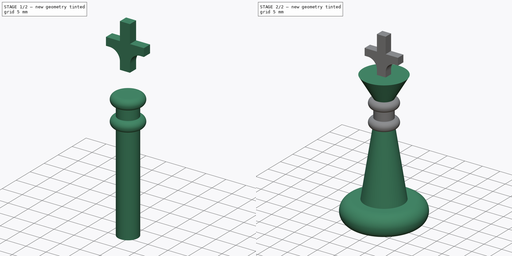
[diagram: build sequence overview — one tinted view per stage of 2, left to right]
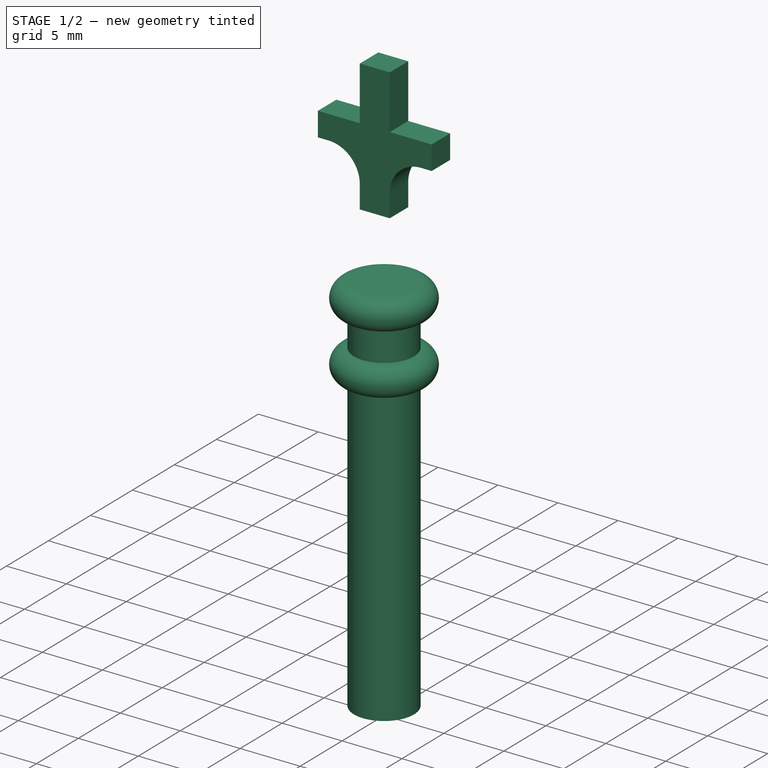
[diagram: stage 1 of 2 — iso view after this stage's code; geometry added in this stage tinted green]
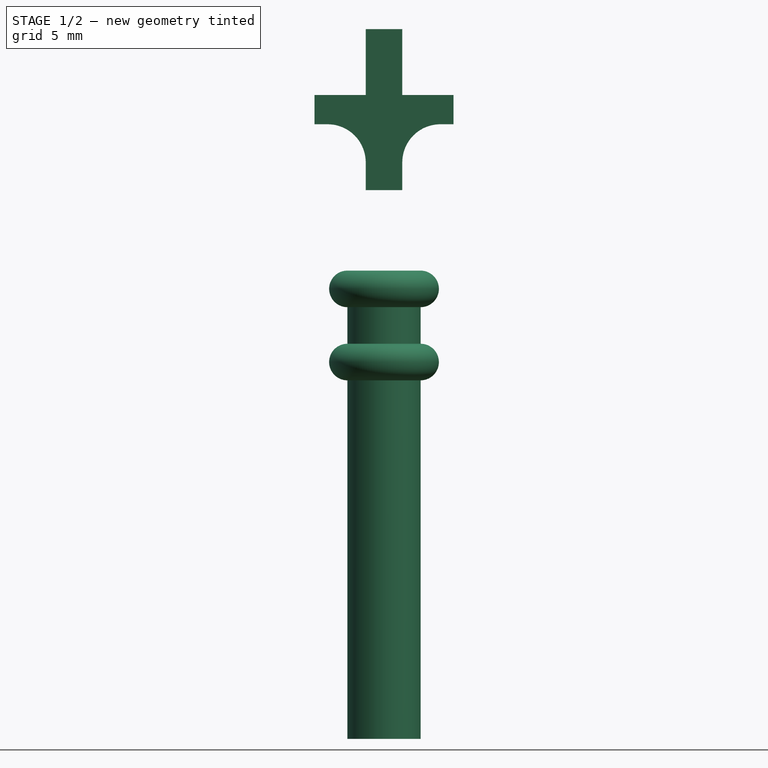
[diagram: stage 1 of 2 — front view after this stage's code; geometry added in this stage tinted green]
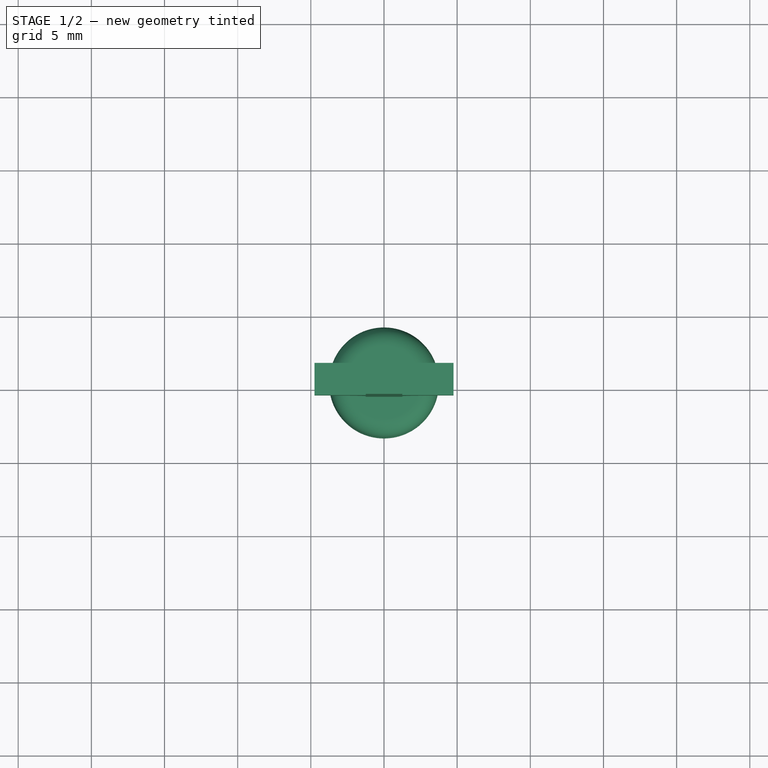
[diagram: stage 1 of 2 — top view after this stage's code; geometry added in this stage tinted green]
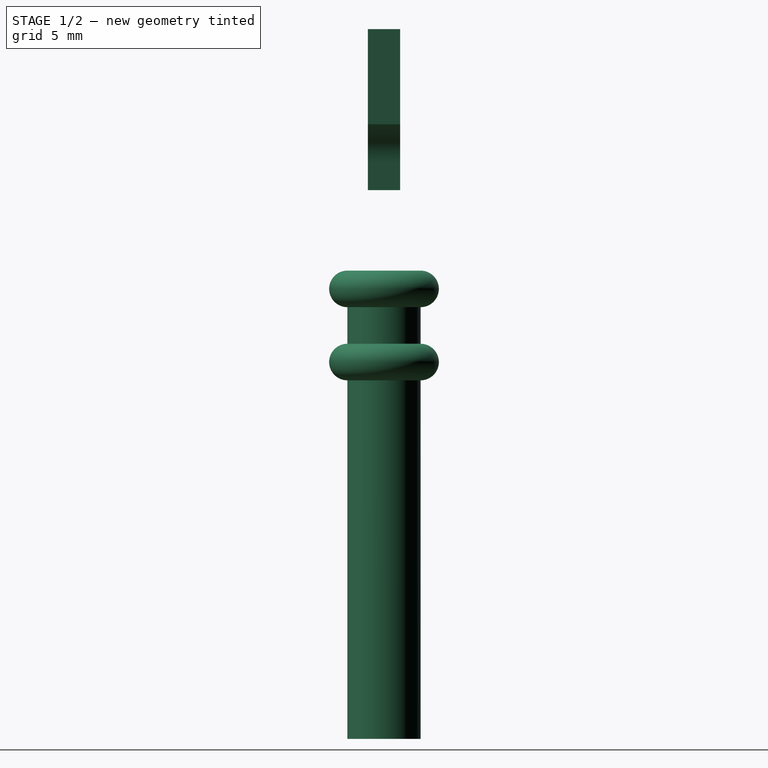
[diagram: stage 1 of 2 — right view after this stage's code; geometry added in this stage tinted green]
FCSTD DOCUMENT  (FreeCAD 0.16R4699 (Git))
Label: king-v001
License: All rights reserved
LicenseURL: http://en.wikipedia.org/wiki/All_rights_reserved
objects: Sketcher::SketchObject×3, PartDesign::Revolution×2, PartDesign::Pad×1, Part::MultiFuse×1
note: 10 computed .brp shape members not serialized (recipe doc carries the construction recipe); baked Part::Feature solids carry a one-line shape summary decoded from their .brp

FEATURE [Sketcher::SketchObject] Sketch002
  Placement = pos=(0,0,0) rot=(-1,0,0;4.71239rad)
  sketch-geometry (7):
    g0: LineSegment StartX=0 StartY=0 StartZ=0 EndX=2.5 EndY=0 EndZ=0
    g1: LineSegment StartX=2.5 StartY=32 StartZ=0 EndX=0 EndY=32 EndZ=0
    g2: LineSegment StartX=0 StartY=32 StartZ=0 EndX=0 EndY=0 EndZ=0
    g3: ArcOfCircle CenterX=2.5 CenterY=30.75 CenterZ=0 NormalX=0 NormalY=0 NormalZ=1 Radius=1.25 StartAngle=4.71239 EndAngle=7.85398
    g4: ArcOfCircle CenterX=2.5 CenterY=25.75 CenterZ=0 NormalX=0 NormalY=0 NormalZ=1 Radius=1.25 StartAngle=4.71239 EndAngle=7.85398
    g5: LineSegment StartX=2.5 StartY=29.5 StartZ=0 EndX=2.5 EndY=27 EndZ=0
    g6: LineSegment StartX=2.5 StartY=24.5 StartZ=0 EndX=2.5 EndY=0 EndZ=0
  constraints (22):
    c: Coincident(g1,g2)
    c: Coincident(g2,g0)
    c: Horizontal(g0)
    c: Horizontal(g1)
    c: Vertical(g2)
    c: Coincident(g0,g-1)
    c: DistanceY(g2) = -32
    c: DistanceX(g1) = -2.5
    c: DistanceY(g3,g1) = 2.5
    c: DistanceY(g4,g4) = 2.5
    c: DistanceY(g4,g3) = 5
    c: Coincident(g5,g3)
    c: Coincident(g5,g4)
    c: Vertical(g5)
    c: Coincident(g6,g4)
    c: Coincident(g6,g0)
    c: Vertical(g6)
    c: Coincident(g3,g1)
    c: DistanceX(g1,g3) = 0
    c: DistanceX(g4,g4) = 0
    c: DistanceX(g4,g1) = 0
    c: DistanceX(g3,g1) = 0
FEATURE [PartDesign::Revolution] Revolution002
  Angle = 360
  Axis = (0,0,1)
  Base = (0,0,0)
  Placement = pos=(0,0,0) rot=(-1,0,0;4.71239rad)
  ReferenceAxis = -> Sketch002 [V_Axis]
  Sketch = -> Sketch002
FEATURE [Sketcher::SketchObject] Sketch003
  Placement = pos=(0,0,0) rot=(-1,0,0;4.71239rad)
  sketch-geometry (14):
    g0: LineSegment StartX=-1.25 StartY=37.5 StartZ=0 EndX=1.25 EndY=37.5 EndZ=0
    g1: LineSegment StartX=1.25 StartY=37.5 StartZ=0 EndX=1.25 EndY=39.4 EndZ=0
    g2: LineSegment StartX=3.85 StartY=42 StartZ=0 EndX=4.75 EndY=42 EndZ=0
    g3: LineSegment StartX=4.75 StartY=42 StartZ=0 EndX=4.75 EndY=44 EndZ=0
    g4: LineSegment StartX=4.75 StartY=44 StartZ=0 EndX=1.25 EndY=44 EndZ=0
    g5: LineSegment StartX=1.25 StartY=44 StartZ=0 EndX=1.25 EndY=48.5 EndZ=0
    g6: LineSegment StartX=1.25 StartY=48.5 StartZ=0 EndX=-1.25 EndY=48.5 EndZ=0
    g7: LineSegment StartX=-1.25 StartY=48.5 StartZ=0 EndX=-1.25 EndY=44 EndZ=0
    g8: LineSegment StartX=-1.25 StartY=44 StartZ=0 EndX=-4.75 EndY=44 EndZ=0
    g9: LineSegment StartX=-4.75 StartY=44 StartZ=0 EndX=-4.75 EndY=42 EndZ=0
    g10: LineSegment StartX=-4.75 StartY=42 StartZ=0 EndX=-3.85 EndY=42 EndZ=0
    g11: LineSegment StartX=-1.25 StartY=39.4 StartZ=0 EndX=-1.25 EndY=37.5 EndZ=0
    g12: ArcOfCircle CenterX=-3.85 CenterY=39.4 CenterZ=0 NormalX=0 NormalY=0 NormalZ=1 Radius=2.6 StartAngle=0 EndAngle=1.5708
    g13: ArcOfCircle CenterX=3.85 CenterY=39.4 CenterZ=0 NormalX=0 NormalY=0 NormalZ=1 Radius=2.6 StartAngle=1.5708 EndAngle=3.14159
  constraints (40):
    c: Horizontal(g0)
    c: Coincident(g0,g1)
    c: Vertical(g1)
    c: Horizontal(g2)
    c: Coincident(g2,g3)
    c: Vertical(g3)
    c: Coincident(g3,g4)
    c: Horizontal(g4)
    c: Coincident(g4,g5)
    c: Vertical(g5)
    c: Coincident(g5,g6)
    c: Horizontal(g6)
    c: Coincident(g6,g7)
    c: Vertical(g7)
    c: Coincident(g7,g8)
    c: Horizontal(g8)
    c: Coincident(g8,g9)
    c: Vertical(g9)
    c: Coincident(g9,g10)
    c: Coincident(g11,g0)
    c: Tangent(g10,g12) = 1.5708
    c: Tangent(g11,g12) = 1.5708
    c: Tangent(g2,g13) = 1.5708
    c: Tangent(g1,g13) = 1.5708
    c: Vertical(g11)
    c: Equal(g1,g11)
    c: Equal(g3,g9)
    c: Equal(g5,g7)
    c: Equal(g0,g6)
    c: Horizontal(g10)
    c: Equal(g2,g10)
    c: Equal(g8,g4)
    c: Symmetric(g0,g0,g-2)
    c: DistanceY(g-1,g0) = 37.5
    c: DistanceX(g0) = 2.5
    c: DistanceY(g3) = 2
    c: Radius(g13) = 2.6
    c: DistanceY(g4,g0) = -6.5
    c: DistanceY(g5) = 4.5
    c: DistanceX(g8) = -3.5
FEATURE [PartDesign::Pad] Pad
  Length = 2.2
  Length2 = 100
  Midplane = true
  Placement = pos=(0,0,0) rot=(-1,0,0;4.71239rad)
  Sketch = -> Sketch003
  Type = 0
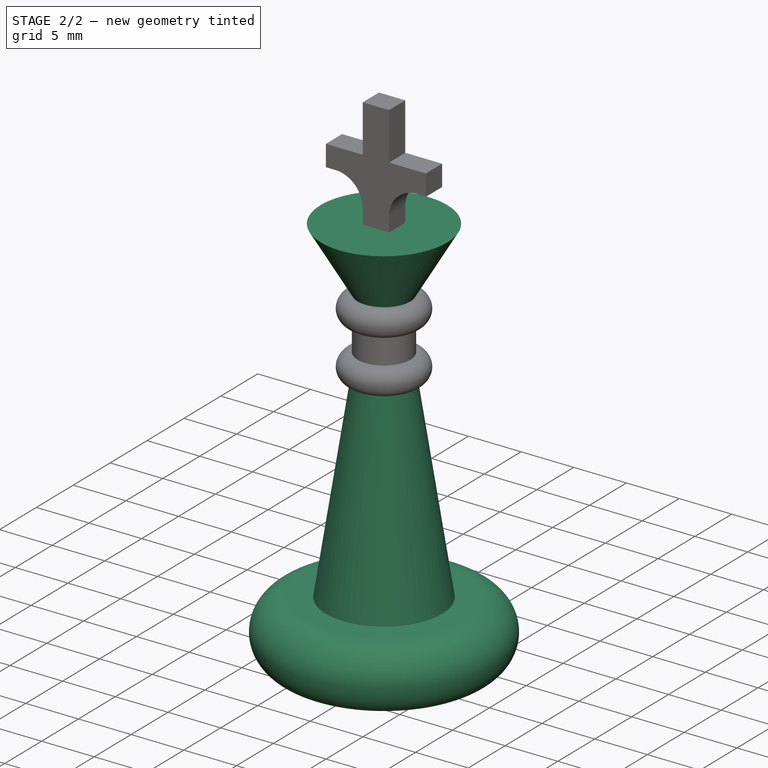
[diagram: stage 2 of 2 — iso view after this stage's code; geometry added in this stage tinted green]
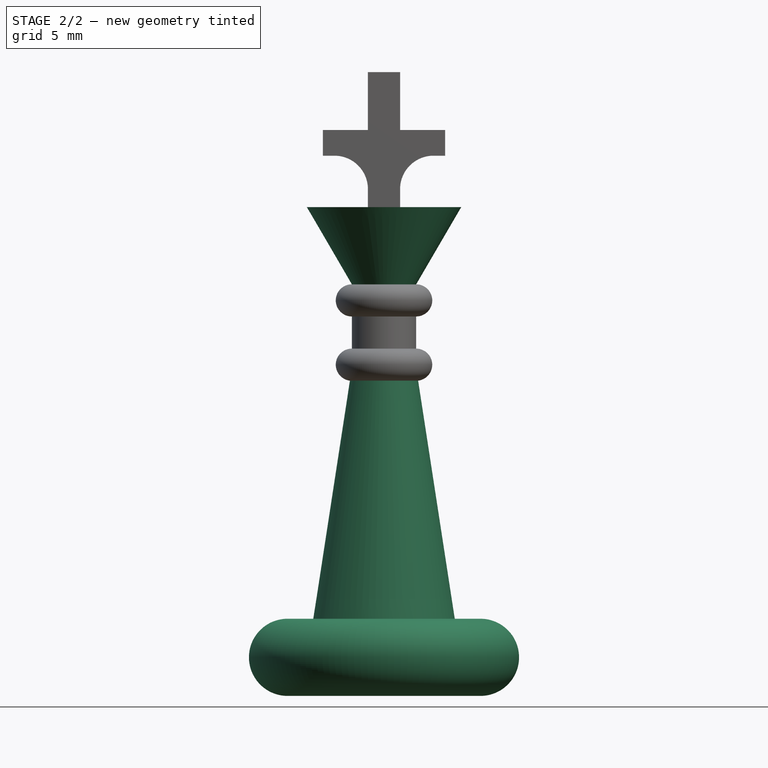
[diagram: stage 2 of 2 — front view after this stage's code; geometry added in this stage tinted green]
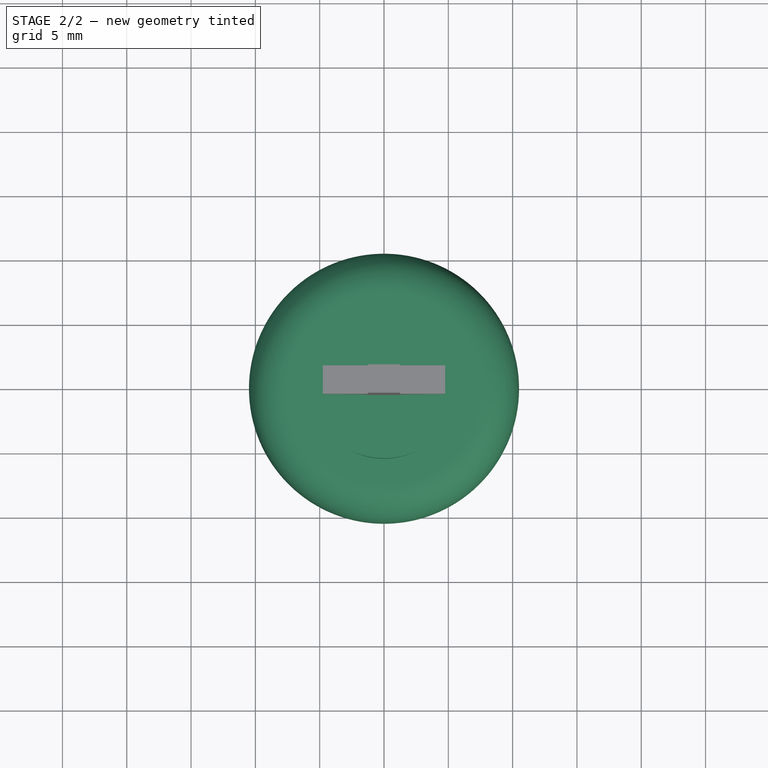
[diagram: stage 2 of 2 — top view after this stage's code; geometry added in this stage tinted green]
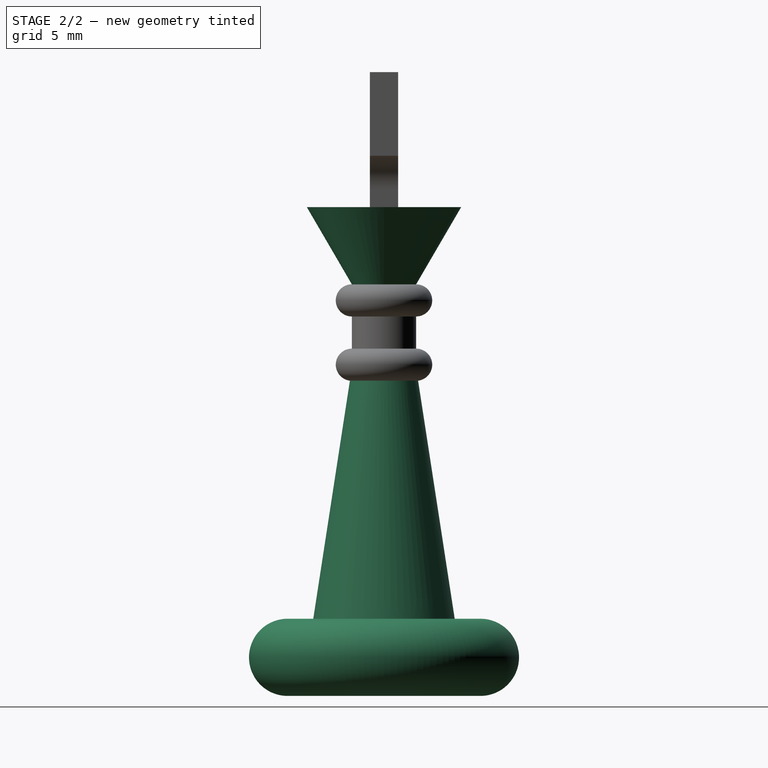
[diagram: stage 2 of 2 — right view after this stage's code; geometry added in this stage tinted green]
FEATURE [Sketcher::SketchObject] Sketch
  Placement = pos=(0,0,0) rot=(1,0,0;1.5708rad)
  sketch-geometry (11):
    g0: LineSegment StartX=0 StartY=0 StartZ=0 EndX=7.5 EndY=0 EndZ=0
    g1: LineSegment [constr] StartX=7.5 StartY=0 StartZ=0 EndX=7.5 EndY=6 EndZ=0
    g2: LineSegment StartX=7.5 StartY=6 StartZ=0 EndX=0 EndY=6 EndZ=0
    g3: LineSegment StartX=0 StartY=6 StartZ=0 EndX=0 EndY=0 EndZ=0
    g4: LineSegment StartX=0 StartY=6 StartZ=0 EndX=5.5 EndY=6 EndZ=0
    g5: LineSegment StartX=5.5 StartY=6 StartZ=0 EndX=2.5 EndY=25.5 EndZ=0
    g6: ArcOfCircle CenterX=7.5 CenterY=3 CenterZ=0 NormalX=0 NormalY=0 NormalZ=1 Radius=3 StartAngle=4.71239 EndAngle=7.85398
    g7: LineSegment StartX=0 StartY=6 StartZ=0 EndX=0 EndY=38 EndZ=0
    g8: LineSegment StartX=0 StartY=38 StartZ=0 EndX=6 EndY=38 EndZ=0
    g9: LineSegment StartX=6 StartY=38 StartZ=0 EndX=2.5 EndY=32 EndZ=0
    g10: LineSegment StartX=2.5 StartY=32 StartZ=0 EndX=2.5 EndY=25.5 EndZ=0
  constraints (31):
    c: Coincident(g0,g1)
    c: Coincident(g1,g2)
    c: Coincident(g2,g3)
    c: Coincident(g3,g0)
    c: Horizontal(g0)
    c: Horizontal(g2)
    c: Vertical(g1)
    c: Vertical(g3)
    c: Coincident(g0,g-1)
    c: Coincident(g4,g5)
    c: Horizontal(g4)
    c: Coincident(g4,g2)
    c: DistanceX(g0) = 7.5
    c: DistanceY(g1) = 6
    c: Coincident(g6,g1)
    c: Coincident(g6,g0)
    c: PointOnObject(g6,g1)
    c: PointOnObject(g7,g-2)
    c: DistanceX(g4,g2) = -5.5
    c: Coincident(g7,g2)
    c: DistanceX(g7,g5) = 2.5
    c: Coincident(g7,g8)
    c: Horizontal(g8)
    c: Coincident(g8,g9)
    c: Coincident(g9,g10)
    c: Coincident(g10,g5)
    c: Vertical(g10)
    c: DistanceY(g9,g8) = 6
    c: DistanceY(g10) = -6.5
    c: DistanceY(g7) = 32
    c: DistanceX(g8) = 6
FEATURE [PartDesign::Revolution] Revolution
  Angle = 360
  Axis = (0,0,1)
  Base = (0,0,0)
  Placement = pos=(0,0,0) rot=(1,0,0;1.5708rad)
  ReferenceAxis = -> Sketch [V_Axis]
  Reversed = true
  Sketch = -> Sketch
FEATURE [Part::MultiFuse] Fusion
  Shapes = -> [Pad,Revolution002,Revolution]
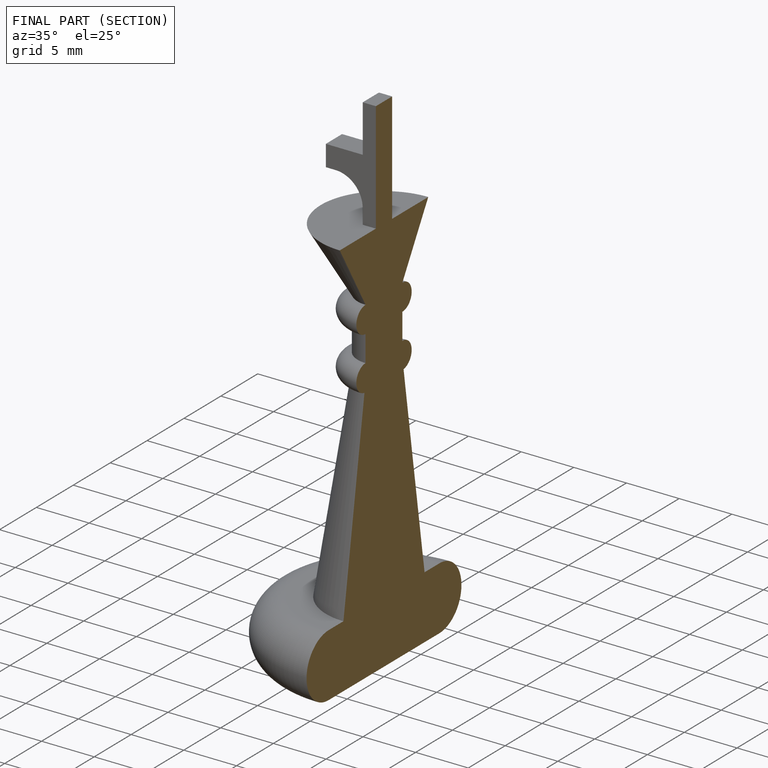
[diagram: finished part — half-section view (interior)]
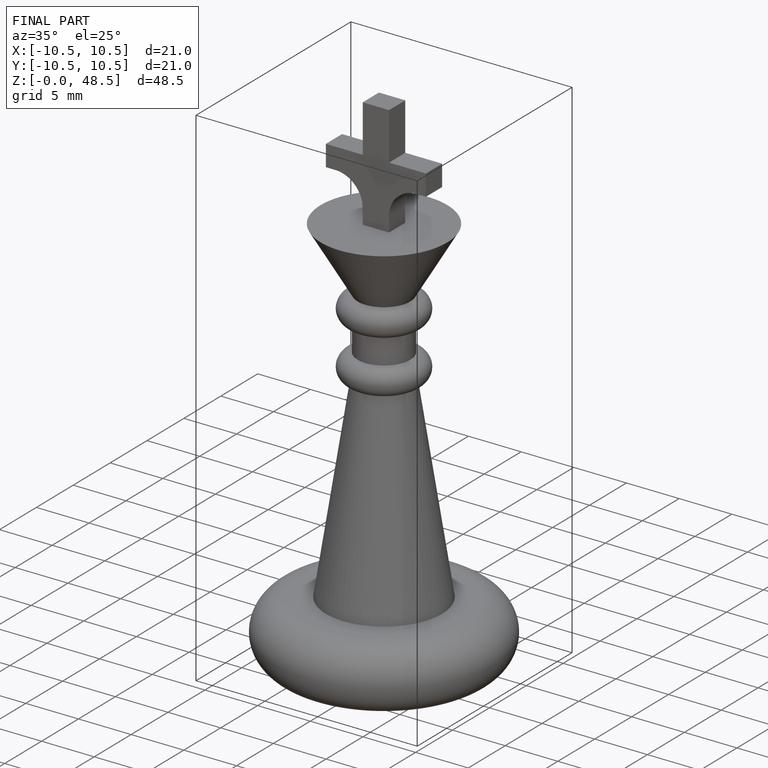
[diagram: finished part — iso view with bounding-box wireframe]
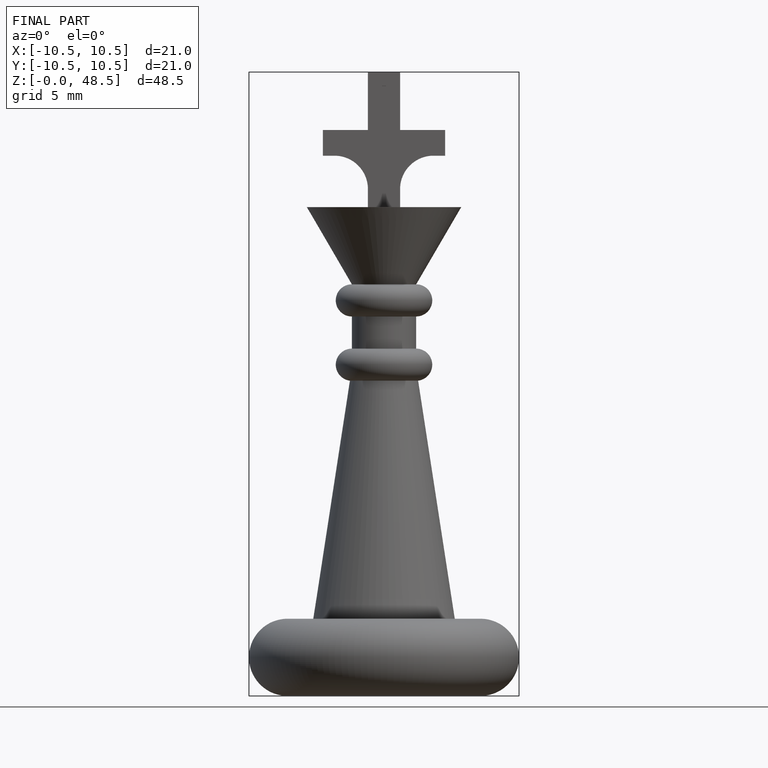
[diagram: finished part — front view with bounding-box wireframe]
